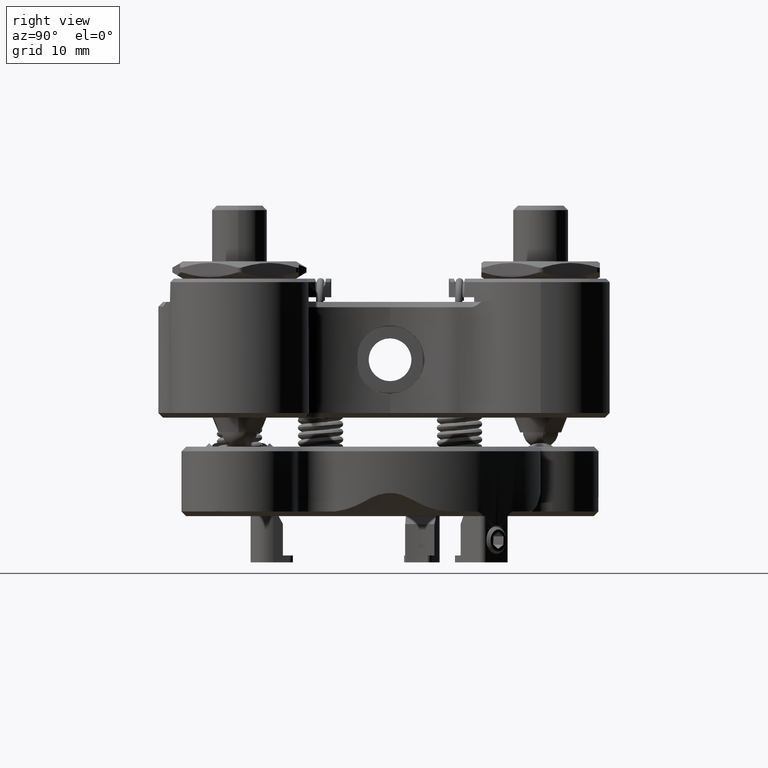
[diagram: clean part render]
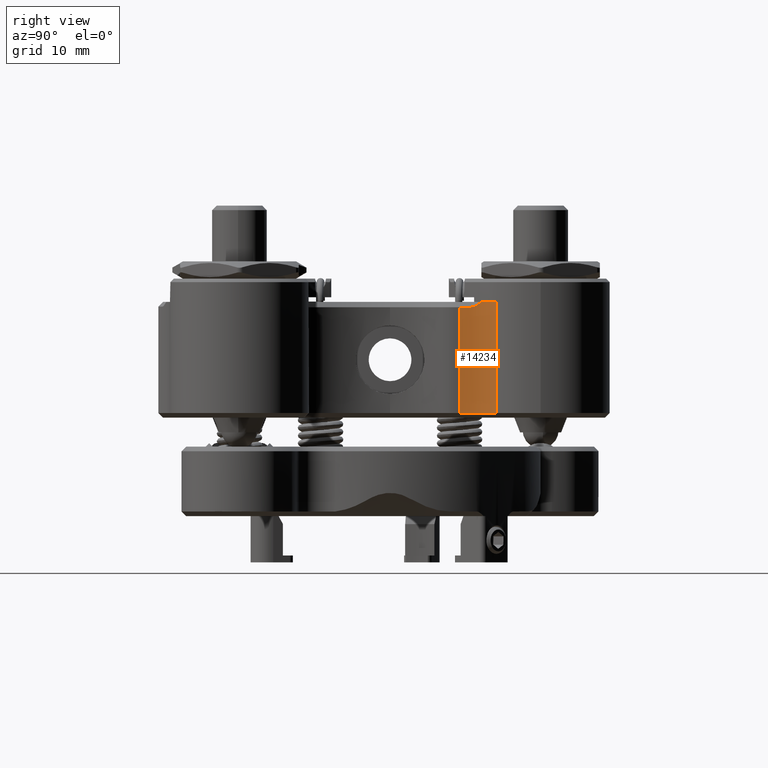
[diagram: same view with one face highlighted and labeled with its STEP entity id]
A machine part, right view. The second image highlights one B-rep face of the part: STEP entity #14234.
In plain terms, the highlighted cylindrical surface (partial cylindrical patch) has radius 6.477 mm, axis along (-0, -0, -1).
Its self-contained STEP definition (entity closure, byte-faithful):
#59 = ORIENTED_EDGE ( 'NONE', *, *, #24347, .F. ) ;
#81 = CYLINDRICAL_SURFACE ( 'NONE', #396, 6.477000000000000313 ) ;
#396 = AXIS2_PLACEMENT_3D ( 'NONE', #7727, #15281, #13535 ) ;
#458 = B_SPLINE_CURVE_WITH_KNOTS ( 'NONE', 3,
 ( #24375, #9429, #13498, #13260, #21031, #22513, #15365, #2245 ),
 .UNSPECIFIED., .F., .F.,
 ( 4, 2, 2, 4 ),
 ( 0.0004777958587136414150, 0.0008118511639231794363, 0.001145906469132717620, 0.001814017079551810902 ),
 .UNSPECIFIED. ) ;
#494 = CARTESIAN_POINT ( 'NONE',  ( 13.33885758444601422, 36.66733472654297543, 37.78947159149129931 ) ) ;
#694 = DIRECTION ( 'NONE',  ( -1.000000000000000000, 0.000000000000000000, 0.000000000000000000 ) ) ;
#2245 = CARTESIAN_POINT ( 'NONE',  ( 13.78516344865819043, 38.63748849390084672, 38.37670909685328979 ) ) ;
#2275 = CARTESIAN_POINT ( 'NONE',  ( 13.32878398817879173, 36.24620216945338314, 37.78943626234246267 ) ) ;
#2540 = VERTEX_POINT ( 'NONE', #2275 ) ;
#2568 = VERTEX_POINT ( 'NONE', #19200 ) ;
#2912 = CARTESIAN_POINT ( 'NONE',  ( 14.77716877998100564, 40.33147912102782584, 38.37670909685328979 ) ) ;
#3032 = EDGE_CURVE ( 'NONE', #8537, #8649, #22993, .T. ) ;
#3246 = CARTESIAN_POINT ( 'NONE',  ( 13.45111040397458879, 37.50211502052118107, 37.78943626234244846 ) ) ;
#4653 = DIRECTION ( 'NONE',  ( 1.000000000000000000, 5.356564693459339226E-15, 0.000000000000000000 ) ) ;
#4747 = ORIENTED_EDGE ( 'NONE', *, *, #18759, .T. ) ;
#5123 = VERTEX_POINT ( 'NONE', #22774 ) ;
#5811 = CARTESIAN_POINT ( 'NONE',  ( 13.32878398817879173, 36.24620216945338314, 37.78943626234246267 ) ) ;
#6056 = CARTESIAN_POINT ( 'NONE',  ( 13.45111040397458879, 37.50211502052118107, 37.78943626234244846 ) ) ;
#6661 = ORIENTED_EDGE ( 'NONE', *, *, #3032, .F. ) ;
#6674 = DIRECTION ( 'NONE',  ( -0.000000000000000000, -0.000000000000000000, -1.000000000000000000 ) ) ;
#6723 = ORIENTED_EDGE ( 'NONE', *, *, #14836, .T. ) ;
#6771 = ORIENTED_EDGE ( 'NONE', *, *, #7667, .F. ) ;
#7232 = AXIS2_PLACEMENT_3D ( 'NONE', #23535, #19700, #694 ) ;
#7646 = CARTESIAN_POINT ( 'NONE',  ( 13.37969980846309426, 37.08673254577708889, 37.78957063099072400 ) ) ;
#7667 = EDGE_CURVE ( 'NONE', #11430, #8537, #458, .T. ) ;
#7727 = CARTESIAN_POINT ( 'NONE',  ( 19.80578326939348344, 36.24925358624009419, 40.91670909685328894 ) ) ;
#8471 = CARTESIAN_POINT ( 'NONE',  ( 13.78516344865819043, 38.63748849390084672, 38.37670909685328979 ) ) ;
#8506 = LINE ( 'NONE', #16057, #15638 ) ;
#8537 = VERTEX_POINT ( 'NONE', #8471 ) ;
#8649 = VERTEX_POINT ( 'NONE', #2912 ) ;
#9429 = CARTESIAN_POINT ( 'NONE',  ( 13.47301004931684609, 37.61319281269424408, 37.78943626234244846 ) ) ;
#9480 = EDGE_CURVE ( 'NONE', #2540, #2568, #8506, .T. ) ;
#9588 = FACE_OUTER_BOUND ( 'NONE', #11266, .T. ) ;
#11266 = EDGE_LOOP ( 'NONE', ( #4747, #19437, #6723, #59, #6661, #6771 ) ) ;
#11430 = VERTEX_POINT ( 'NONE', #3246 ) ;
#12349 = AXIS2_PLACEMENT_3D ( 'NONE', #13925, #19959, #4653 ) ;
#13260 = CARTESIAN_POINT ( 'NONE',  ( 13.54902401569297155, 37.92732476074741044, 37.88806362047897380 ) ) ;
#13498 = CARTESIAN_POINT ( 'NONE',  ( 13.49704967033727954, 37.71991316670688121, 37.81221164132935542 ) ) ;
#13535 = DIRECTION ( 'NONE',  ( -1.000000000000000000, 0.000000000000000000, 0.000000000000000000 ) ) ;
#13925 = CARTESIAN_POINT ( 'NONE',  ( 19.80578326939348344, 36.24925358624009419, 38.37670909685328979 ) ) ;
#14234 = ADVANCED_FACE ( 'NONE', ( #9588 ), #81, .F. ) ;
#14836 = EDGE_CURVE ( 'NONE', #2568, #5123, #17878, .T. ) ;
#15281 = DIRECTION ( 'NONE',  ( -0.000000000000000000, -0.000000000000000000, -1.000000000000000000 ) ) ;
#15365 = CARTESIAN_POINT ( 'NONE',  ( 13.71967088345262731, 38.47239496573365614, 38.23953988240184998 ) ) ;
#15638 = VECTOR ( 'NONE', #6674, 1000.000000000000000 ) ;
#15758 = VECTOR ( 'NONE', #19994, 1000.000000000000000 ) ;
#16057 = CARTESIAN_POINT ( 'NONE',  ( 13.32878326939348312, 36.24925358624009419, 40.91670909685328894 ) ) ;
#16679 = LINE ( 'NONE', #21864, #15758 ) ;
#17407 = CARTESIAN_POINT ( 'NONE',  ( 13.41034774065577473, 37.29536159717638810, 37.79167143072522350 ) ) ;
#17878 = CIRCLE ( 'NONE', #7232, 6.477000000000000313 ) ;
#18759 = EDGE_CURVE ( 'NONE', #11430, #2540, #19110, .T. ) ;
#19110 = B_SPLINE_CURVE_WITH_KNOTS ( 'NONE', 3,
 ( #6056, #17407, #7646, #494, #22723, #5811 ),
 .UNSPECIFIED., .F., .F.,
 ( 4, 2, 4 ),
 ( 0.000000000000000000, 0.0006319743997300281482, 0.001263948799460056296 ),
 .UNSPECIFIED. ) ;
#19200 = CARTESIAN_POINT ( 'NONE',  ( 13.32878326939348135, 36.24925358624009419, 26.18470909685332515 ) ) ;
#19437 = ORIENTED_EDGE ( 'NONE', *, *, #9480, .T. ) ;
#19700 = DIRECTION ( 'NONE',  ( 0.000000000000000000, 0.000000000000000000, -1.000000000000000000 ) ) ;
#19959 = DIRECTION ( 'NONE',  ( -0.000000000000000000, -0.000000000000000000, -1.000000000000000000 ) ) ;
#19994 = DIRECTION ( 'NONE',  ( -0.000000000000000000, -0.000000000000000000, -1.000000000000000000 ) ) ;
#21031 = CARTESIAN_POINT ( 'NONE',  ( 13.57582356078048669, 38.02364474767629332, 37.93864496049805979 ) ) ;
#21864 = CARTESIAN_POINT ( 'NONE',  ( 14.77716877998112821, 40.33147912102772636, 40.91670909685328894 ) ) ;
#22513 = CARTESIAN_POINT ( 'NONE',  ( 13.65936036384022501, 38.30116643160829426, 38.10636802566124004 ) ) ;
#22723 = CARTESIAN_POINT ( 'NONE',  ( 13.32868470859874677, 36.45693501778568191, 37.79119208311414724 ) ) ;
#22774 = CARTESIAN_POINT ( 'NONE',  ( 14.77716877998112821, 40.33147912102772636, 26.18470909685332870 ) ) ;
#22993 = CIRCLE ( 'NONE', #12349, 6.477000000000000313 ) ;
#23535 = CARTESIAN_POINT ( 'NONE',  ( 19.80578326939348344, 36.24925358624009419, 26.18470909685332515 ) ) ;
#24347 = EDGE_CURVE ( 'NONE', #8649, #5123, #16679, .T. ) ;
#24375 = CARTESIAN_POINT ( 'NONE',  ( 13.45111040397458879, 37.50211502052118107, 37.78943626234244846 ) ) ;